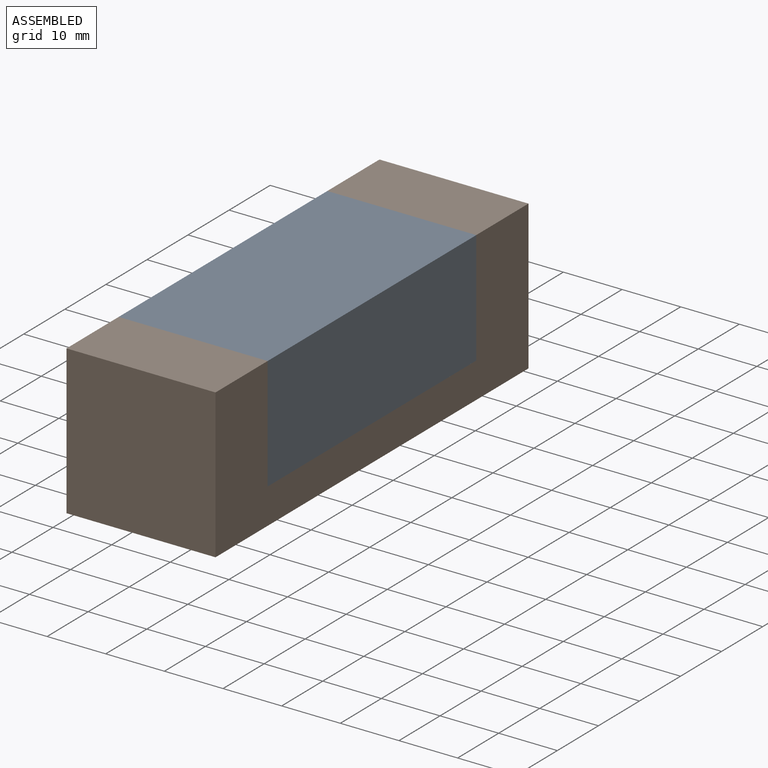
[diagram: assembled view]
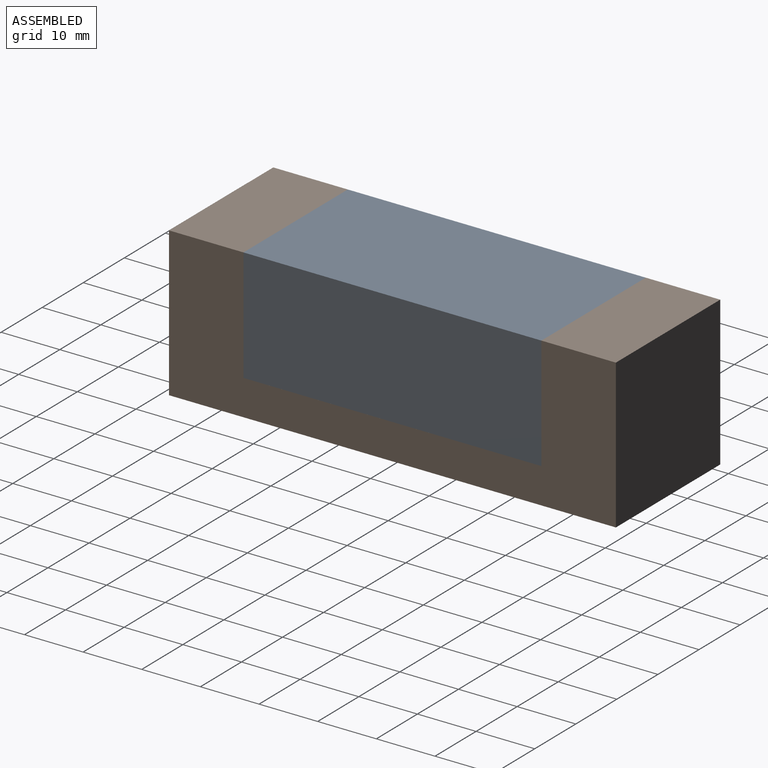
[diagram: assembled view, second angle]
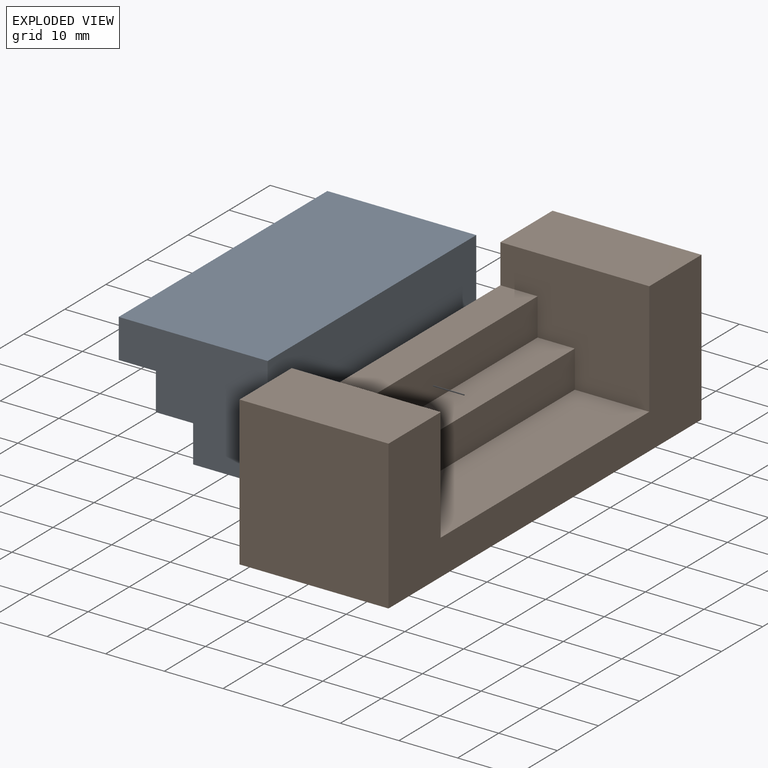
[diagram: exploded view]
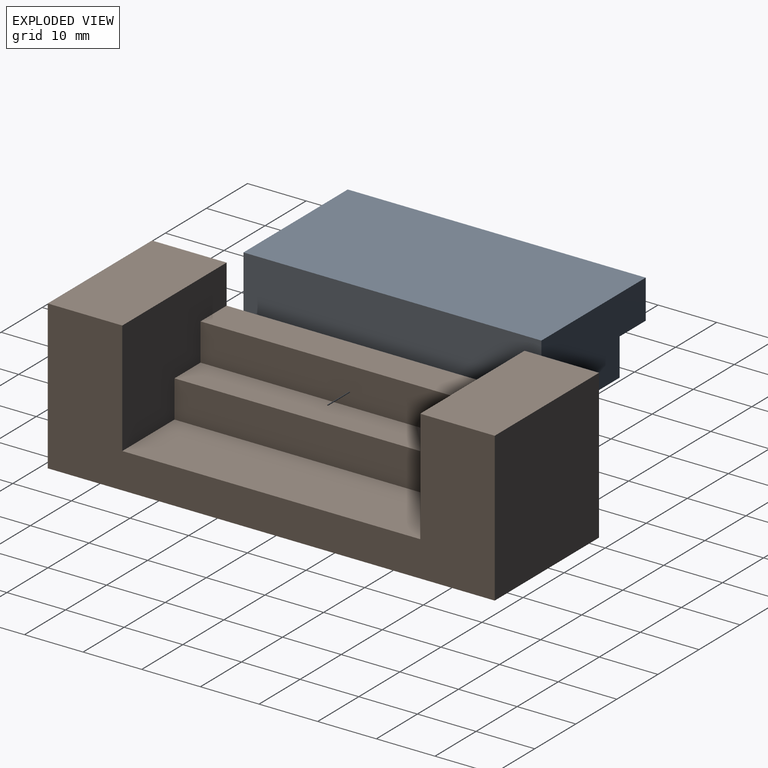
[diagram: exploded view, second angle]
ASSEMBLY  parts=2 mates=4
PART A: 10 faces, bbox 25.4x50.8x19.3 mm
  f0: plane 50.8x6.64mm, normal (-1,0,0), area 337.2mm2, adj f1,f7,f8,f9
  f1: plane 50.8x6.35mm, normal (0,0,-1), area 322.6mm2, adj f0,f2,f8,f9
  f2: plane 50.8x6.35mm, normal (-1,0,0), area 322.6mm2, adj f1,f3,f8,f9
  f3: plane 50.8x6.35mm, normal (0,0,-1), area 322.6mm2, adj f2,f4,f8,f9
  f4: plane 50.8x6.35mm, normal (-1,0,0), area 322.6mm2, adj f3,f5,f8,f9
  f5: plane 50.8x12.7mm, normal (0,0,-1), area 645.2mm2, adj f4,f6,f8,f9
  f6: plane 50.8x19.34mm, normal (1,0,0), area 982.4mm2, adj f5,f7,f8,f9
  f7: plane 50.8x25.4mm, normal (0,0,1), area 1290.3mm2, adj f0,f6,f8,f9
  f8: plane 25.4x19.34mm, normal (0,-1,0), area 370.2mm2, adj f0,f1,f2,f3,f4,f5,f6,f7
  f9: plane 25.4x19.34mm, normal (0,1,0), area 370.2mm2, adj f0,f1,f2,f3,f4,f5,f6,f7
PART B: 14 faces, bbox 25.4x76.2x25.4 mm
  f0: plane 25.4x12.7mm, normal (0,0,1), area 322.6mm2, adj f1,f2,f6,f13
  f1: plane 76.2x25.4mm, normal (-1,0,0), area 1598.3mm2, adj f0,f3,f4,f5,f6,f7,f12,f13
  f2: plane 76.2x25.4mm, normal (1,0,0), area 953.1mm2, adj f0,f3,f4,f5,f6,f11,f12,f13
  f3: plane 25.4x12.7mm, normal (0,0,1), area 322.6mm2, adj f1,f2,f5,f12
  f4: plane 76.2x25.4mm, normal (0,0,-1), area 1935.5mm2, adj f1,f2,f5,f6
  f5: plane 25.4x25.4mm, normal (0,-1,0), area 645.2mm2, adj f1,f2,f3,f4
  f6: plane 25.4x25.4mm, normal (0,1,0), area 645.2mm2, adj f0,f1,f2,f4
  f7: plane 50.8x6.35mm, normal (0,0,1), area 322.6mm2, adj f1,f8,f12,f13
  f8: plane 50.8x6.35mm, normal (1,0,0), area 322.6mm2, adj f7,f9,f12,f13
  f9: plane 50.8x6.35mm, normal (0,0,1), area 322.6mm2, adj f8,f10,f12,f13
  f10: plane 50.8x6.35mm, normal (1,0,0), area 322.6mm2, adj f9,f11,f12,f13
  f11: plane 50.8x12.7mm, normal (0,0,1), area 645.2mm2, adj f2,f10,f12,f13
  f12: plane 25.4x19.34mm, normal (0,1,0), area 370.2mm2, adj f1,f2,f3,f7,f8,f9,f10,f11
  f13: plane 25.4x19.34mm, normal (0,-1,0), area 370.2mm2, adj f0,f1,f2,f7,f8,f9,f10,f11
PLACE A t=(-0.38,40.8,3.56)mm
PLACE B t=(-0.38,40.8,3.56)mm
MATE planar A.f2 <-> B.f8  axis (-1,0,0) through (-33.23,40.8,33.16)mm
MATE parallel B.f0 <-> A.f7  axis (0,0,1) through (-26.88,72.55,42.97)mm
MATE planar B.f12 <-> A.f8  axis (0,1,0) through (-24.46,15.4,34.73)mm
MATE planar A.f1 <-> B.f7  axis (0,0,-1) through (-36.4,40.8,36.34)mm
